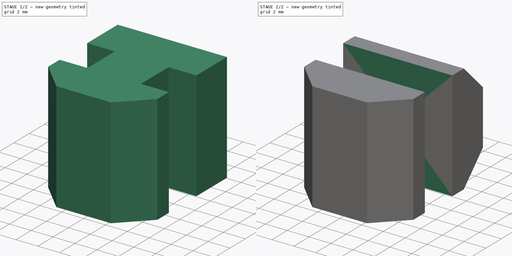
[diagram: build sequence overview — one tinted view per stage of 2, left to right]
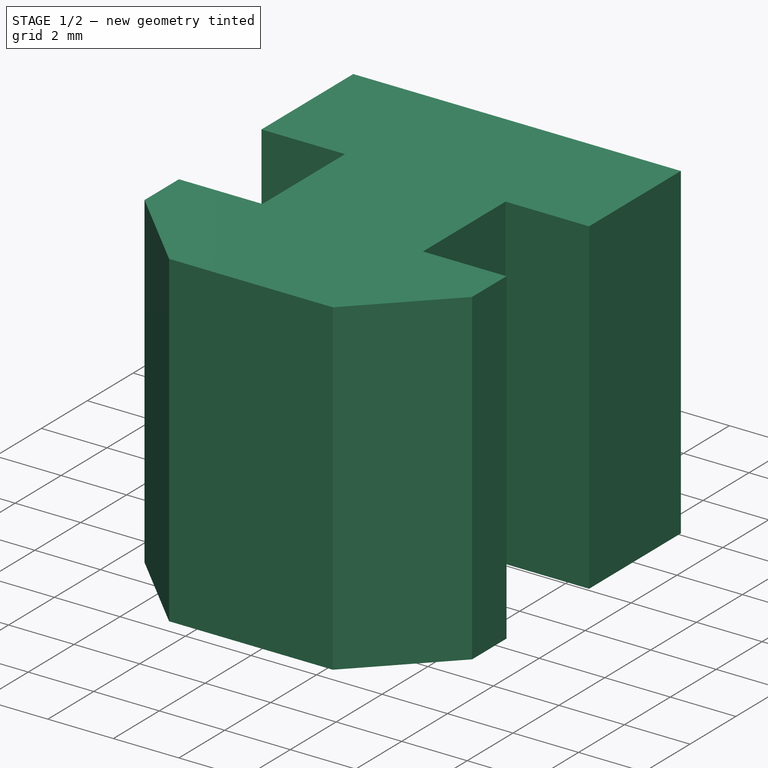
[diagram: stage 1 of 2 — iso view after this stage's code; geometry added in this stage tinted green]
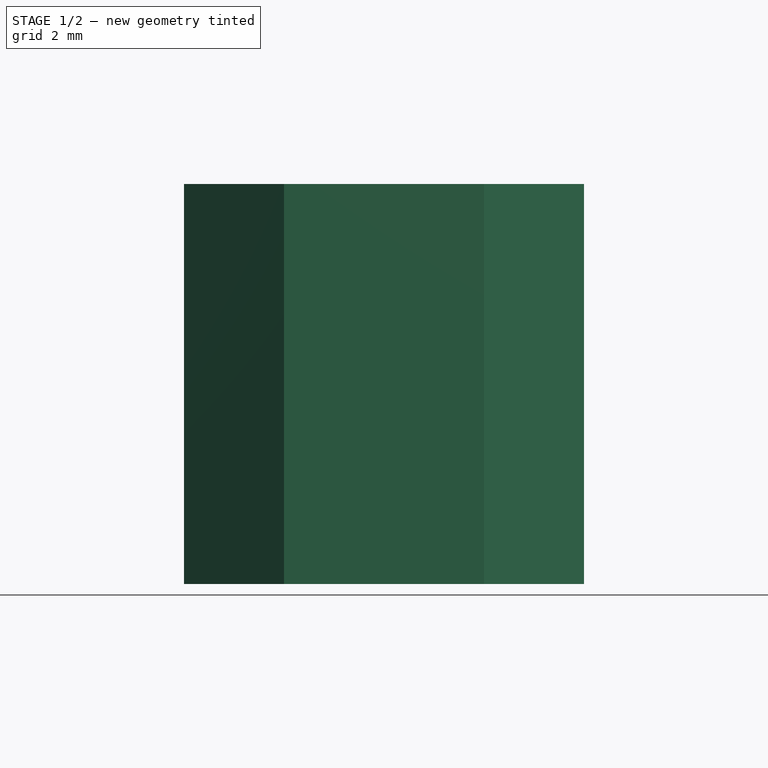
[diagram: stage 1 of 2 — front view after this stage's code; geometry added in this stage tinted green]
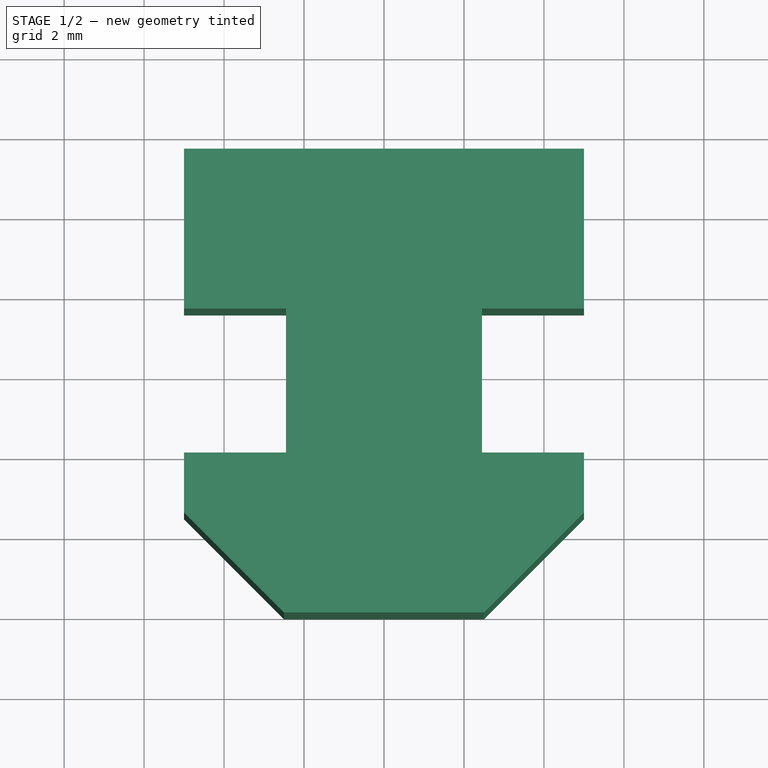
[diagram: stage 1 of 2 — top view after this stage's code; geometry added in this stage tinted green]
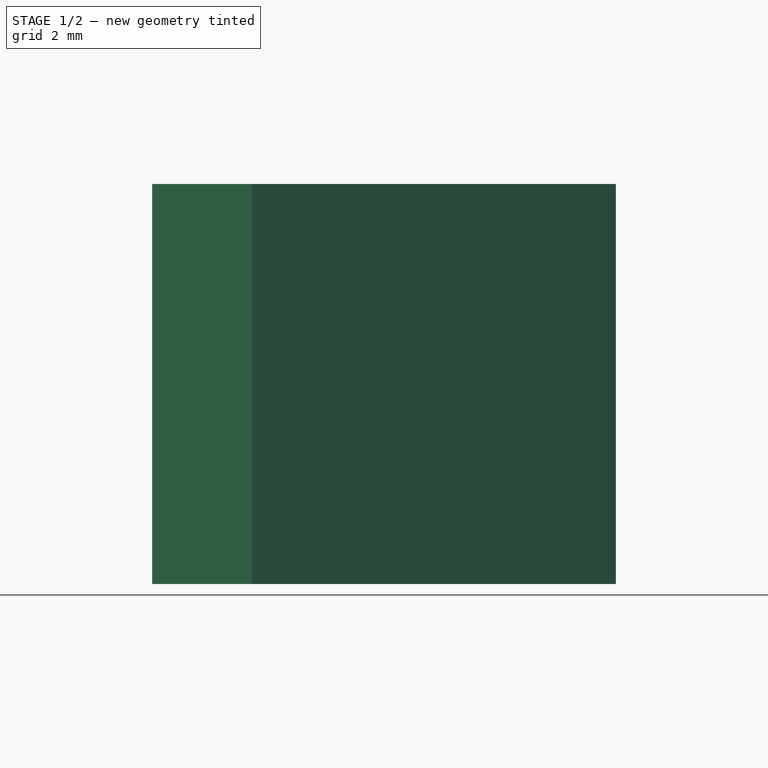
[diagram: stage 1 of 2 — right view after this stage's code; geometry added in this stage tinted green]
FCSTD DOCUMENT  (FreeCAD 0.19R20209 (Git))
Label: 2020_Samling
License: Creative Commons Attribution
LicenseURL: http://creativecommons.org/licenses/by/4.0/
objects: Sketcher::SketchObject×2, PartDesign::Pad×1, PartDesign::Pocket×1, PartDesign::Body×1
note: 7 computed .brp shape members not serialized (recipe doc carries the construction recipe); baked Part::Feature solids carry a one-line shape summary decoded from their .brp

FEATURE [Sketcher::SketchObject] Sketch
  MapMode = 5
  Support = -> [XY_Plane]
  expr: Constraints[38] = 1.8 * 2
  sketch-geometry (14):
    g0: LineSegment StartX=-5 StartY=4 StartZ=0 EndX=-2.45 EndY=4 EndZ=0
    g1: LineSegment StartX=5 StartY=4 StartZ=0 EndX=5 EndY=2.5 EndZ=0
    g2: LineSegment StartX=5 StartY=2.5 StartZ=0 EndX=2.5 EndY=0 EndZ=0
    g3: LineSegment StartX=2.5 StartY=0 StartZ=0 EndX=-2.5 EndY=0 EndZ=0
    g4: LineSegment StartX=-2.5 StartY=0 StartZ=0 EndX=-5 EndY=2.5 EndZ=0
    g5: LineSegment StartX=-5 StartY=2.5 StartZ=0 EndX=-5 EndY=4 EndZ=0
    g6: LineSegment StartX=-5 StartY=11.6 StartZ=0 EndX=5 EndY=11.6 EndZ=0
    g7: LineSegment StartX=5 StartY=11.6 StartZ=0 EndX=5 EndY=7.6 EndZ=0
    g8: LineSegment StartX=-5 StartY=7.6 StartZ=0 EndX=-5 EndY=11.6 EndZ=0
    g9: LineSegment StartX=-5 StartY=7.6 StartZ=0 EndX=-2.45 EndY=7.6 EndZ=0
    g10: LineSegment StartX=-2.45 StartY=7.6 StartZ=0 EndX=-2.45 EndY=4 EndZ=0
    g11: LineSegment StartX=2.45 StartY=4 StartZ=0 EndX=2.45 EndY=7.6 EndZ=0
    g12: LineSegment StartX=2.45 StartY=7.6 StartZ=0 EndX=5 EndY=7.6 EndZ=0
    g13: LineSegment StartX=2.45 StartY=4 StartZ=0 EndX=5 EndY=4 EndZ=0
  constraints (39):
    c: Coincident(g13,g1)
    c: Coincident(g1,g2)
    c: Coincident(g2,g3)
    c: Horizontal(g3)
    c: Coincident(g3,g4)
    c: Coincident(g4,g5)
    c: Vertical(g5)
    c: Coincident(g0,g5)
    c: Symmetric(g3,g2,g-1)
    c: DistanceX(g3,g2) = 5
    c: Equal(g5,g1)
    c: Vertical(g1)
    c: DistanceX(g4,g1) = 10
    c: Symmetric(g1,g4,g-2)
    c: Angle(g3,g4) = 2.35619
    c: DistanceY(g3,g0) = 4
    c: Coincident(g6,g7)
    c: Coincident(g8,g6)
    c: Horizontal(g6)
    c: Vertical(g7)
    c: Vertical(g8)
    c: Symmetric(g8,g7,g-2)
    c: Horizontal(g9)
    c: Coincident(g9,g10)
    c: Vertical(g10)
    c: Vertical(g11)
    c: Coincident(g11,g12)
    c: Horizontal(g12)
    c: Coincident(g12,g7)
    c: Coincident(g9,g8)
    c: Equal(g9,g12)
    c: Equal(g10,g11)
    c: Vertical(g8,g0)
    c: Coincident(g0,g10)
    c: PointOnObject(g13,g11)
    c: Tangent(g0,g13)
    c: DistanceY(g8,g8) = 4
    c: DistanceX(g9,g11) = 4.9
    c: DistanceY(g10,g10) = 3.6
FEATURE [PartDesign::Pad] Pad
  Length = 10
  Length2 = 100
  Midplane = true
  Profile = -> Sketch
  Refine = true
  Type = 0
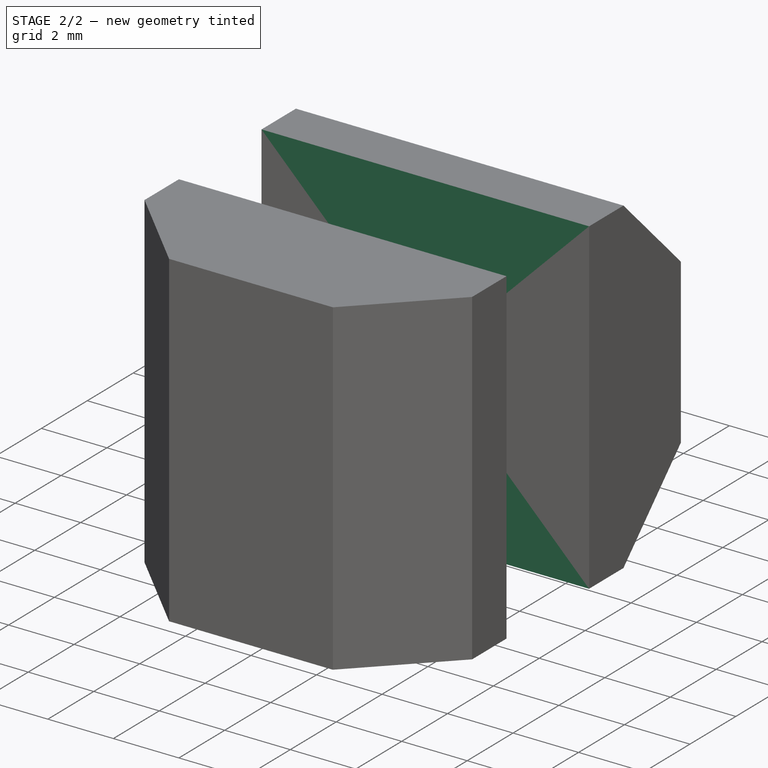
[diagram: stage 2 of 2 — iso view after this stage's code; geometry added in this stage tinted green]
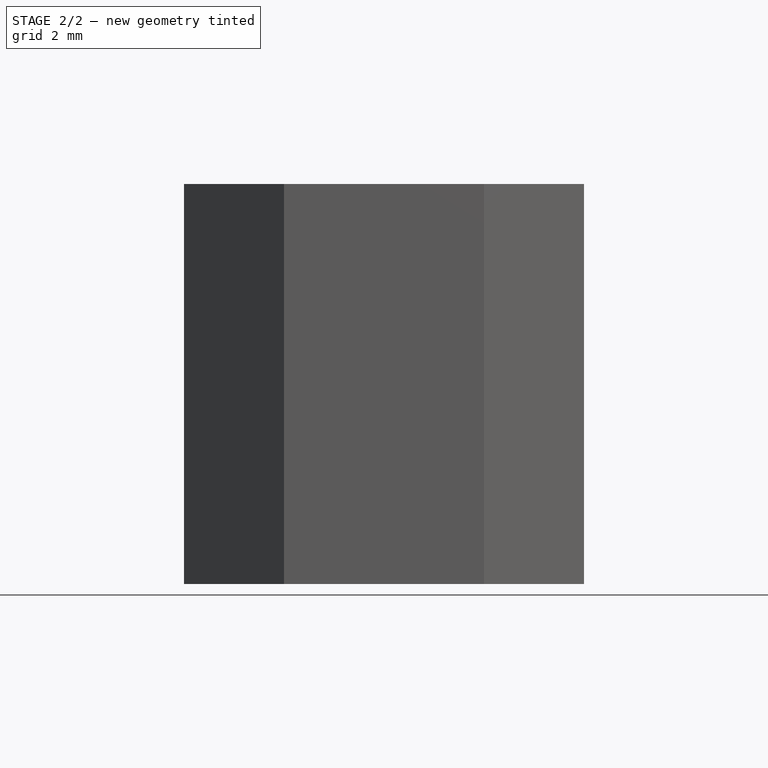
[diagram: stage 2 of 2 — front view after this stage's code; geometry added in this stage tinted green]
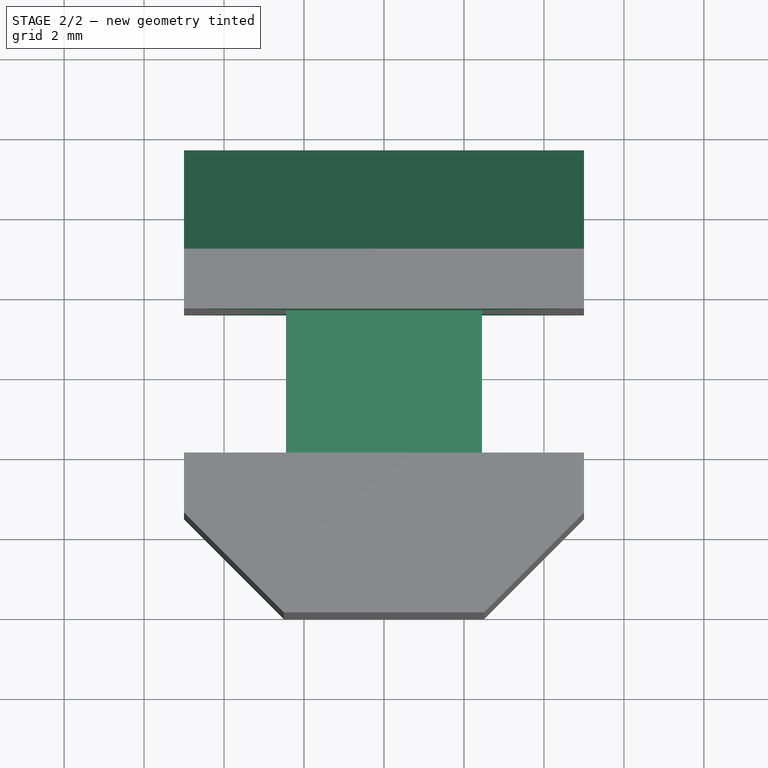
[diagram: stage 2 of 2 — top view after this stage's code; geometry added in this stage tinted green]
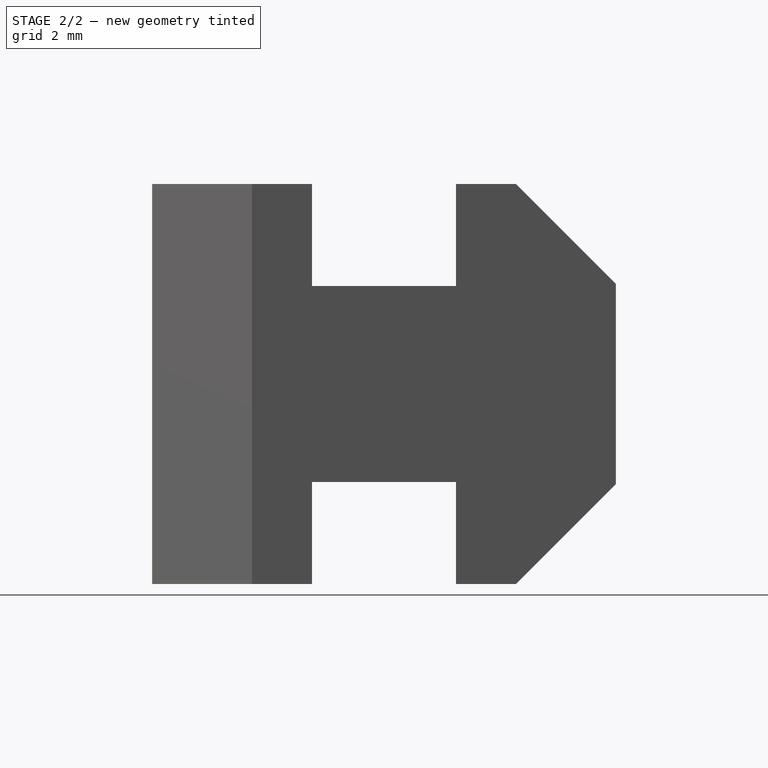
[diagram: stage 2 of 2 — right view after this stage's code; geometry added in this stage tinted green]
FEATURE [Sketcher::SketchObject] Sketch001
  ExternalGeometry = -> [Pad]
  MapMode = 5
  Placement = pos=(0,0,0) rot=(0.57735,0.57735,0.57735;2.0944rad)
  Support = -> [YZ_Plane]
  sketch-geometry (14):
    g0: LineSegment StartX=11.6 StartY=2.5 StartZ=0 EndX=11.6 EndY=-2.5 EndZ=0
    g1: LineSegment StartX=11.6 StartY=2.5 StartZ=0 EndX=9.1 EndY=5 EndZ=0
    g2: LineSegment StartX=9.1 StartY=5 StartZ=0 EndX=7.6 EndY=5 EndZ=0
    g3: LineSegment StartX=4 StartY=6.89237 StartZ=0 EndX=13.1609 EndY=6.89237 EndZ=0
    g4: LineSegment StartX=13.1609 StartY=6.89237 StartZ=0 EndX=13.1609 EndY=-6.89237 EndZ=0
    g5: LineSegment StartX=13.1609 StartY=-6.89237 StartZ=0 EndX=4 EndY=-6.89237 EndZ=0
    g6: LineSegment StartX=7.6 StartY=-5 StartZ=0 EndX=9.1 EndY=-5 EndZ=0
    g7: LineSegment StartX=9.1 StartY=-5 StartZ=0 EndX=11.6 EndY=-2.5 EndZ=0
    g8: LineSegment StartX=7.6 StartY=5 StartZ=0 EndX=7.6 EndY=2.45 EndZ=0
    g9: LineSegment StartX=7.6 StartY=2.45 StartZ=0 EndX=4 EndY=2.45 EndZ=0
    g10: LineSegment StartX=4 StartY=2.45 StartZ=0 EndX=4 EndY=6.89237 EndZ=0
    g11: LineSegment StartX=7.6 StartY=-5 StartZ=0 EndX=7.6 EndY=-2.45 EndZ=0
    g12: LineSegment StartX=7.6 StartY=-2.45 StartZ=0 EndX=4 EndY=-2.45 EndZ=0
    g13: LineSegment StartX=4 StartY=-2.45 StartZ=0 EndX=4 EndY=-6.89237 EndZ=0
  constraints (35):
    c: Symmetric(g0,g0,g-1)
    c: DistanceY(g0,g0) = 5
    c: Coincident(g1,g2)
    c: Horizontal(g2)
    c: Horizontal(g3)
    c: Coincident(g3,g4)
    c: Vertical(g4)
    c: Coincident(g4,g5)
    c: Coincident(g6,g7)
    c: Horizontal(g5)
    c: Horizontal(g6)
    c: Coincident(g2,g-3)
    c: Coincident(g7,g0)
    c: Coincident(g1,g0)
    c: Vertical(g0,g-3)
    c: Angle(g1,g0) = 2.35619
    c: Equal(g2,g6)
    c: Vertical(g8)
    c: Coincident(g8,g9)
    c: Horizontal(g9)
    c: Coincident(g9,g10)
    c: Vertical(g10)
    c: Vertical(g11)
    c: Coincident(g11,g12)
    c: Horizontal(g12)
    c: Coincident(g12,g13)
    c: Vertical(g13)
    c: Vertical(g9,g-5)
    c: Symmetric(g9,g12,g-1)
    c: Coincident(g8,g2)
    c: Coincident(g11,g6)
    c: Coincident(g6,g-4)
    c: Coincident(g5,g13)
    c: Coincident(g3,g10)
    c: DistanceY(g11,g8) = 4.9
FEATURE [PartDesign::Pocket] Pocket
  BaseFeature = -> Pad
  Length = 5
  Length2 = 100
  Midplane = true
  Profile = -> Sketch001
  Refine = true
  Type = 1
FEATURE [PartDesign::Body] Body
  Group = -> [Sketch,Pad,Sketch001,Pocket]
  Origin = -> Origin
  Tip = -> Pocket
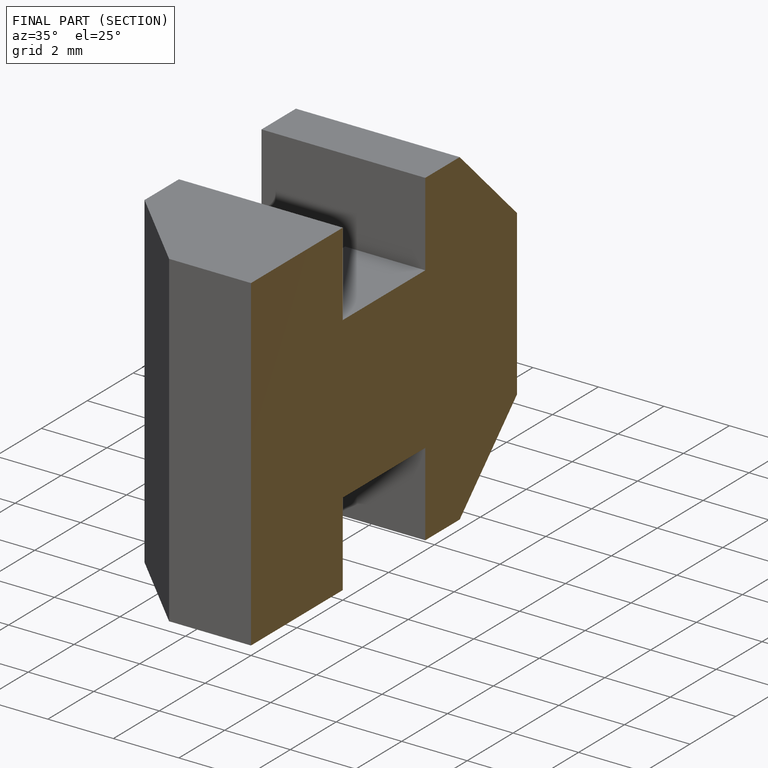
[diagram: finished part — half-section view (interior)]
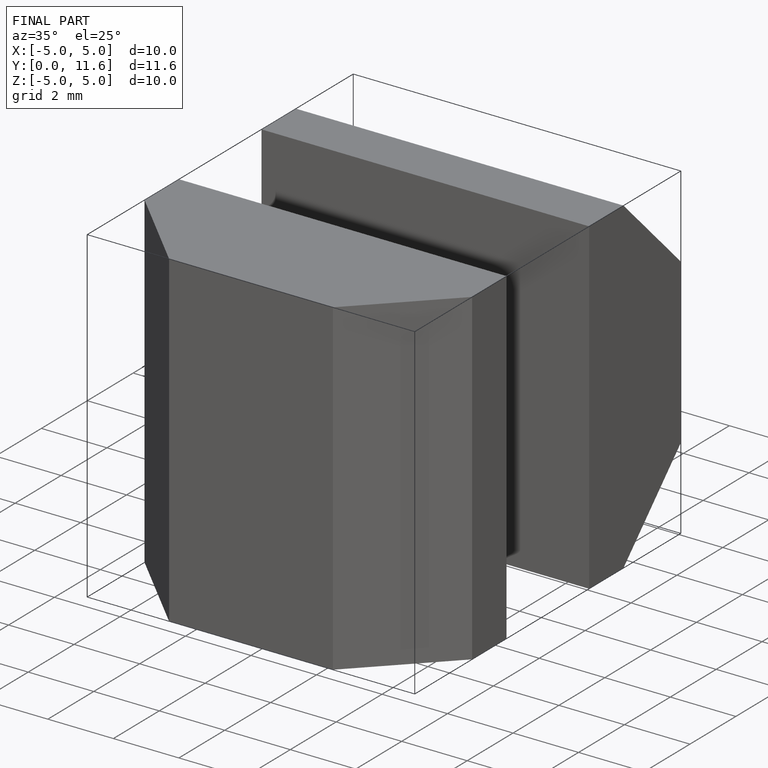
[diagram: finished part — iso view with bounding-box wireframe]
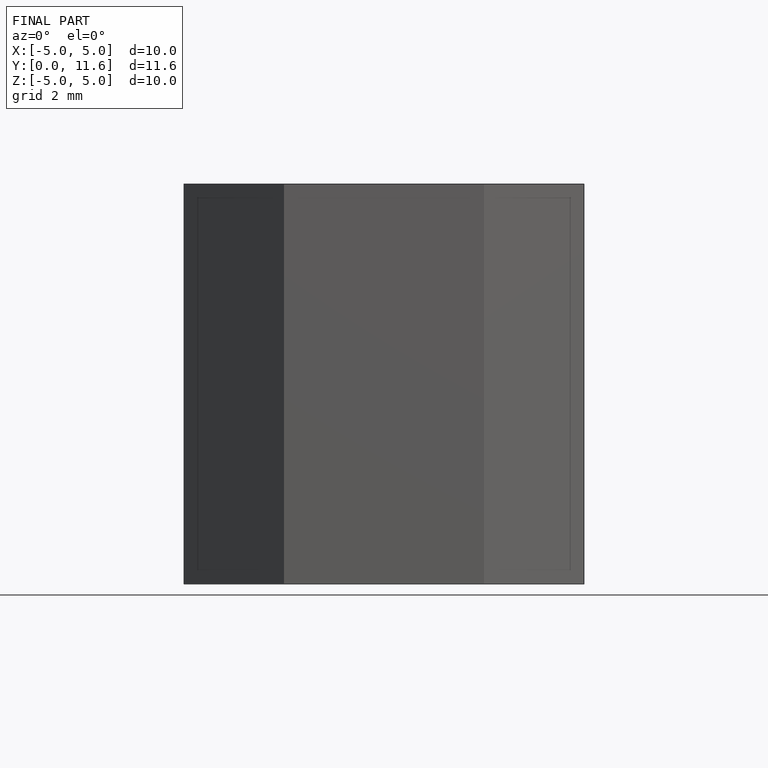
[diagram: finished part — front view with bounding-box wireframe]
